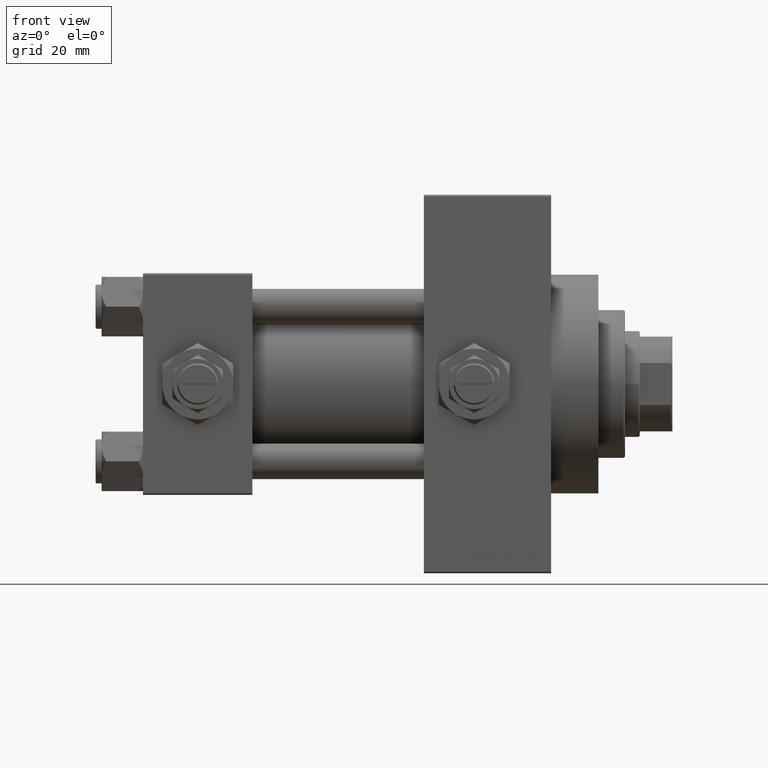
[diagram: clean part render]
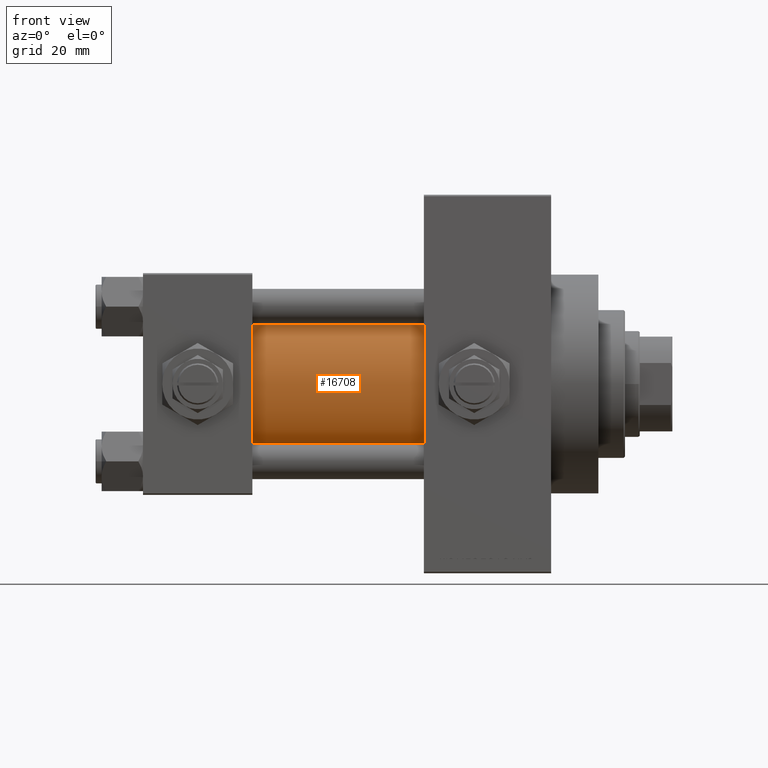
[diagram: same view with one face highlighted and labeled with its STEP entity id]
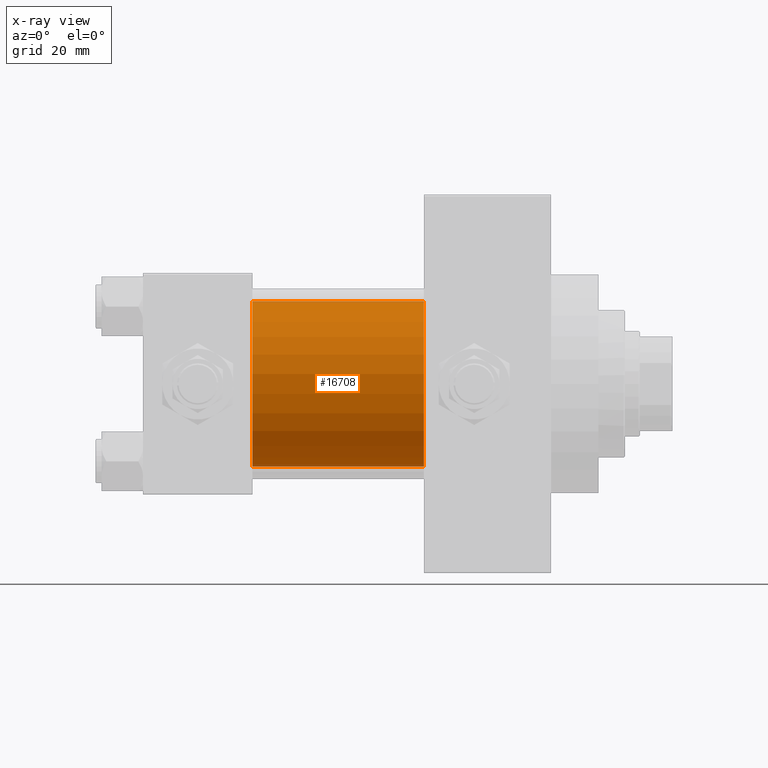
[diagram: x-ray of the same camera — body ghosted, the highlighted face saturated]
A machine part, front view. The second image highlights one B-rep face of the part: STEP entity #16708.
The next image is the same camera in x-ray: the body ghosted, the highlighted face saturated — about 2% of this face is hidden behind the body in this view.
In plain terms, the highlighted cylindrical surface (partial cylindrical patch) has radius 28 mm, axis along (-1, -0, -0).
Its self-contained STEP definition (entity closure, byte-faithful):
#390 = EDGE_CURVE ( 'NONE', #44056, #30068, #38265, .T. ) ;
#2280 = CARTESIAN_POINT ( 'NONE',  ( 95.00000000000000000, -2.602085213965210642E-15, 0.000000000000000000 ) ) ;
#5118 = LINE ( 'NONE', #34969, #18333 ) ;
#8135 = DIRECTION ( 'NONE',  ( -1.000000000000000000, -0.000000000000000000, -0.000000000000000000 ) ) ;
#9802 = DIRECTION ( 'NONE',  ( -1.000000000000000000, -0.000000000000000000, -0.000000000000000000 ) ) ;
#10564 = CIRCLE ( 'NONE', #17757, 28.00000000000000000 ) ;
#13094 = AXIS2_PLACEMENT_3D ( 'NONE', #2280, #9802, #21078 ) ;
#13356 = EDGE_LOOP ( 'NONE', ( #24558, #14268, #23132, #47170 ) ) ;
#14268 = ORIENTED_EDGE ( 'NONE', *, *, #390, .F. ) ;
#15617 = CARTESIAN_POINT ( 'NONE',  ( 95.00000000000000000, 8.269258236473776482E-16, -28.00000000000000000 ) ) ;
#15633 = DIRECTION ( 'NONE',  ( 1.000000000000000000, -0.000000000000000000, 0.000000000000000000 ) ) ;
#16672 = LINE ( 'NONE', #32458, #41367 ) ;
#16708 = ADVANCED_FACE ( 'NONE', ( #43877 ), #28354, .T. ) ;
#17757 = AXIS2_PLACEMENT_3D ( 'NONE', #41200, #15633, #26903 ) ;
#17966 = CARTESIAN_POINT ( 'NONE',  ( 95.00000000000000000, -2.602085213965210642E-15, 28.00000000000000000 ) ) ;
#18333 = VECTOR ( 'NONE', #8135, 1000.000000000000000 ) ;
#21078 = DIRECTION ( 'NONE',  ( 0.000000000000000000, 0.000000000000000000, 1.000000000000000000 ) ) ;
#23132 = ORIENTED_EDGE ( 'NONE', *, *, #31202, .T. ) ;
#24558 = ORIENTED_EDGE ( 'NONE', *, *, #35215, .F. ) ;
#26903 = DIRECTION ( 'NONE',  ( 0.000000000000000000, 0.000000000000000000, 1.000000000000000000 ) ) ;
#28354 = CYLINDRICAL_SURFACE ( 'NONE', #13094, 28.00000000000000000 ) ;
#28564 = CARTESIAN_POINT ( 'NONE',  ( 37.00000000000000000, 8.269258236473776482E-16, -28.00000000000000000 ) ) ;
#28626 = AXIS2_PLACEMENT_3D ( 'NONE', #41973, #37721, #45725 ) ;
#30068 = VERTEX_POINT ( 'NONE', #15617 ) ;
#31202 = EDGE_CURVE ( 'NONE', #44056, #37801, #16672, .T. ) ;
#32458 = CARTESIAN_POINT ( 'NONE',  ( 95.00000000000000000, -2.602085213965210642E-15, 28.00000000000000000 ) ) ;
#32673 = VERTEX_POINT ( 'NONE', #28564 ) ;
#34969 = CARTESIAN_POINT ( 'NONE',  ( 95.00000000000000000, 8.269258236473776482E-16, -28.00000000000000000 ) ) ;
#35215 = EDGE_CURVE ( 'NONE', #30068, #32673, #5118, .T. ) ;
#37721 = DIRECTION ( 'NONE',  ( 1.000000000000000000, 0.000000000000000000, 0.000000000000000000 ) ) ;
#37801 = VERTEX_POINT ( 'NONE', #46978 ) ;
#38265 = CIRCLE ( 'NONE', #28626, 28.00000000000000000 ) ;
#41200 = CARTESIAN_POINT ( 'NONE',  ( 37.00000000000000000, -2.602085213965210642E-15, 0.000000000000000000 ) ) ;
#41367 = VECTOR ( 'NONE', #47487, 1000.000000000000000 ) ;
#41973 = CARTESIAN_POINT ( 'NONE',  ( 95.00000000000000000, -2.602085213965210642E-15, 0.000000000000000000 ) ) ;
#43877 = FACE_OUTER_BOUND ( 'NONE', #13356, .T. ) ;
#44056 = VERTEX_POINT ( 'NONE', #17966 ) ;
#45725 = DIRECTION ( 'NONE',  ( 0.000000000000000000, 0.000000000000000000, -1.000000000000000000 ) ) ;
#46493 = EDGE_CURVE ( 'NONE', #37801, #32673, #10564, .T. ) ;
#46978 = CARTESIAN_POINT ( 'NONE',  ( 37.00000000000000000, -2.602085213965210642E-15, 28.00000000000000000 ) ) ;
#47170 = ORIENTED_EDGE ( 'NONE', *, *, #46493, .T. ) ;
#47487 = DIRECTION ( 'NONE',  ( -1.000000000000000000, -0.000000000000000000, -0.000000000000000000 ) ) ;